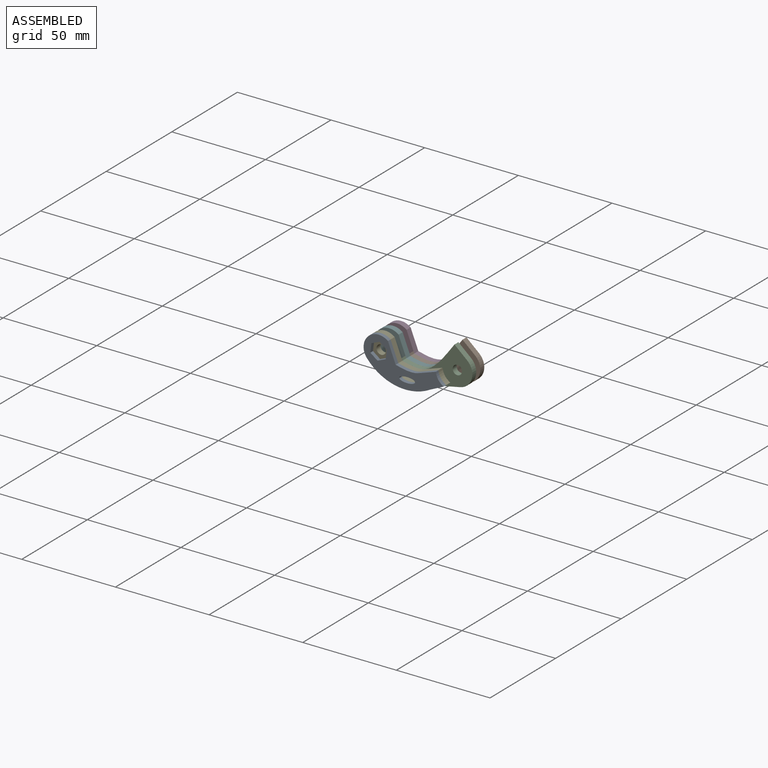
[diagram: assembled view]
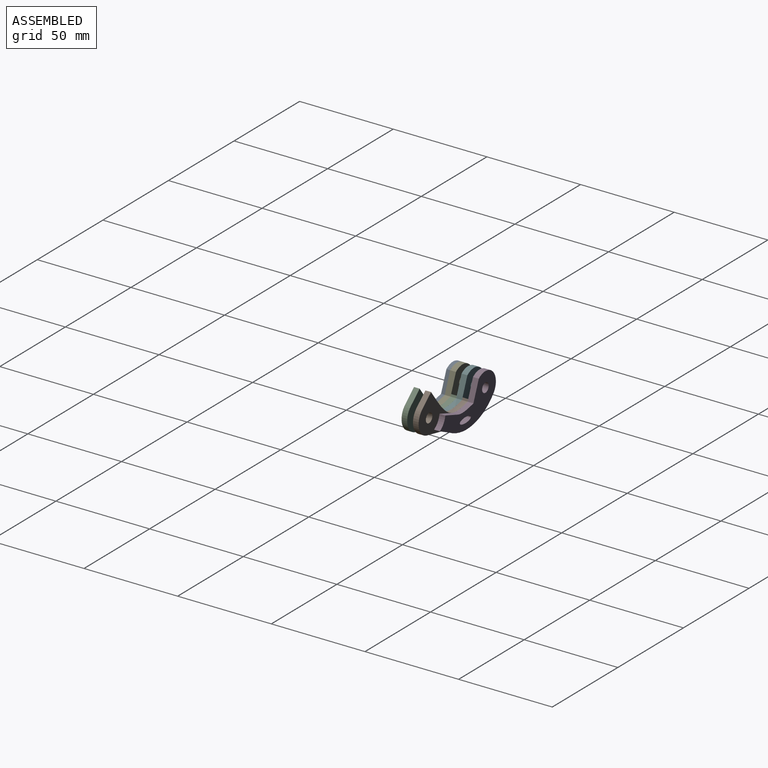
[diagram: assembled view, second angle]
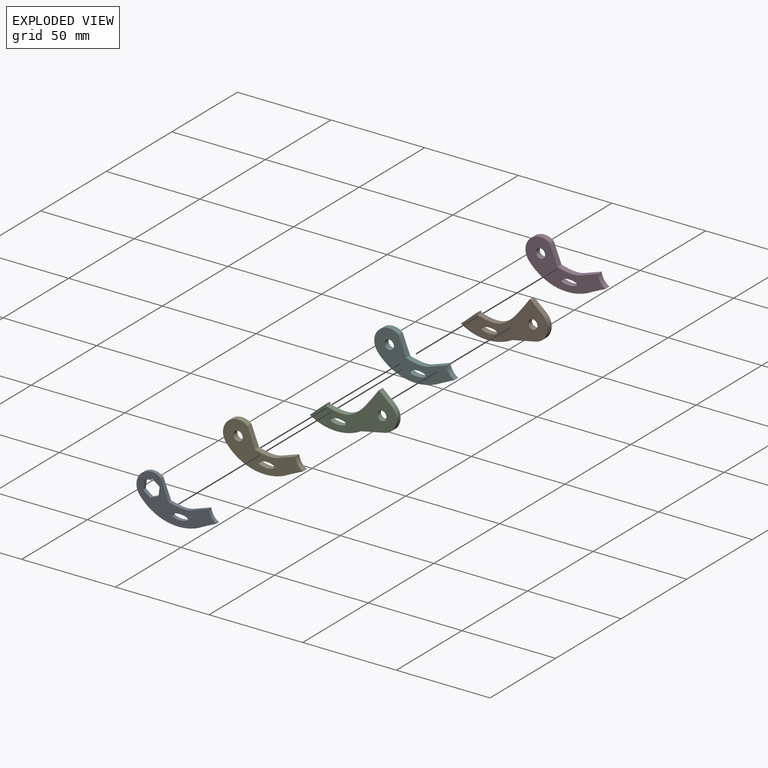
[diagram: exploded view]
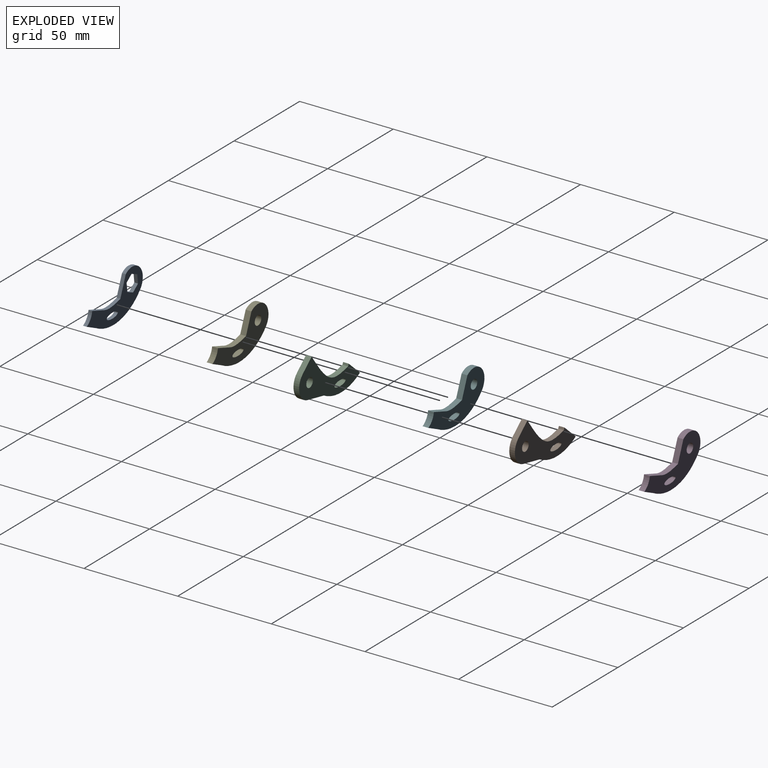
[diagram: exploded view, second angle]
ASSEMBLY  parts=6 mates=5
PART A: 16 faces, bbox 42.7x2x22.7 mm
  f0: plane 3.8x2.85mm, normal (0.6,0,0.8), area 9.5mm2, adj f1,f11,f14,f15
  f1: plane 4.72x2mm, normal (0.99,0,-0.12), area 9.5mm2, adj f0,f2,f14,f15
  f2: plane 4.37x2mm, normal (0.39,0,-0.92), area 9.5mm2, adj f1,f3,f14,f15
  f3: plane 3.8x2.85mm, normal (-0.6,0,-0.8), area 9.5mm2, adj f2,f4,f14,f15
  f4: plane 4.72x2mm, normal (-0.99,0,0.12), area 9.5mm2, adj f3,f11,f14,f15
  f5: cylinder r=26.67mm len=34.06mm, axis (0,1,0), area 75.5mm2, adj f6,f12,f14,f15
  f6: plane 7.11x3.34mm, normal (0.43,0,-0.91), area 15.7mm2, adj f5,f7,f14,f15
  f7: cylinder r=8mm len=6.06mm, axis (0,1,0), area 15.3mm2, adj f6,f8,f14,f15
  f8: plane 8.82x3mm, normal (-0.32,0,0.95), area 18.6mm2, adj f7,f9,f14,f15
  f9: extruded ~12.63x2mm, area 25.7mm2, adj f8,f10,f14,f15
  f10: plane 10.35x4.11mm, normal (0.93,0,0.37), area 22.3mm2, adj f9,f12,f14,f15
  f11: plane 4.37x2mm, normal (-0.39,0,0.92), area 9.5mm2, adj f0,f4,f14,f15
  f12: cylinder r=8mm len=13.01mm, axis (0,1,0), area 46.1mm2, adj f5,f10,f14,f15
  f13: extruded ~8.46x2.95mm, area 38mm2, adj f14,f15
  f14: plane 42.74x22.69mm, normal (0,-1,0), area 391.6mm2, adj f0,f1,f2,f3,f4,f5,f6,f7
  f15: plane 42.74x22.69mm, normal (0,1,0), area 391.6mm2, adj f0,f1,f2,f3,f4,f5,f6,f7
PART B: 13 faces, bbox 46.4x3x25.9 mm
  f0: extruded ~11.49x10.88mm, area 48mm2, adj f1,f9,f11,f12
  f1: extruded ~12.63x3mm, area 38.5mm2, adj f0,f2,f11,f12
  f2: plane 3x1.1mm, normal (0.93,0,0.37), area 3.6mm2, adj f1,f3,f11,f12
  f3: plane 8.58x7.57mm, normal (-0.66,0,0.75), area 34.3mm2, adj f2,f4,f11,f12
  f4: cylinder r=26.67mm len=27.52mm, axis (0,1,0), area 86.8mm2, adj f3,f5,f11,f12
  f5: cylinder r=7300.02mm len=12.48mm, axis (0,1,0), area 38.2mm2, adj f4,f6,f11,f12
  f6: cylinder r=8mm len=13.88mm, axis (0,1,0), area 53.4mm2, adj f5,f7,f11,f12
  f7: plane 6.77x5.88mm, normal (0.66,0,0.75), area 26.9mm2, adj f6,f9,f11,f12
  f8: extruded ~8.46x3mm, area 57mm2, adj f11,f12
  f9: plane 5.04x3.74mm, normal (-0.8,0,0.6), area 18.8mm2, adj f0,f7,f11,f12
  f10: cylinder r=2.5mm len=5mm, axis (0,1,0), area 47.1mm2, adj f11,f12
  f11: plane 46.39x25.87mm, normal (0,-1,0), area 467.4mm2, adj f0,f1,f2,f3,f4,f5,f6,f7
  f12: plane 46.39x25.87mm, normal (0,1,0), area 467.4mm2, adj f0,f1,f2,f3,f4,f5,f6,f7
PART C: same geometry as B
PART D: 11 faces, bbox 42.7x3.1x22.7 mm
  f0: cylinder r=26.67mm len=34.06mm, axis (0,1,0), area 116.9mm2, adj f1,f7,f9,f10
  f1: plane 7.11x3.34mm, normal (0.43,0,-0.91), area 24.4mm2, adj f0,f2,f9,f10
  f2: cylinder r=8mm len=6.06mm, axis (0,1,0), area 23.7mm2, adj f1,f3,f9,f10
  f3: plane 8.82x3.1mm, normal (-0.32,0,0.95), area 28.9mm2, adj f2,f4,f9,f10
  f4: extruded ~12.63x3.1mm, area 39.8mm2, adj f3,f5,f9,f10
  f5: plane 10.35x4.11mm, normal (0.93,0,0.37), area 34.5mm2, adj f4,f7,f9,f10
  f6: cylinder r=2.5mm len=5mm, axis (0,1,0), area 48.7mm2, adj f9,f10
  f7: cylinder r=8mm len=13.01mm, axis (0,1,0), area 71.5mm2, adj f0,f5,f9,f10
  f8: extruded ~8.46x3.1mm, area 58.9mm2, adj f9,f10
  f9: plane 42.74x22.69mm, normal (0,-1,0), area 430.6mm2, adj f0,f1,f2,f3,f4,f5,f6,f7
  f10: plane 42.74x22.69mm, normal (0,1,0), area 430.6mm2, adj f0,f1,f2,f3,f4,f5,f6,f7
PART E: same geometry as D
PART F: same geometry as D
PLACE A t=(-3.34,-9.55,4.42)mm
PLACE B t=(-3.34,2.65,4.42)mm
PLACE C t=(-3.34,-3.45,4.42)mm
PLACE D t=(-3.34,5.75,4.42)mm
PLACE E t=(-3.34,-6.45,4.42)mm
PLACE F t=(-3.34,-0.35,4.42)mm
MATE fastened B.f12 <-> D.f9  axis (0,1,0) through (-11.22,2.65,-0.7)mm
MATE fastened E.f9 <-> A.f15  axis (0,-1,0) through (-11.22,-9.55,-0.7)mm
MATE fastened F.f9 <-> C.f12  axis (0,-1,0) through (-11.22,-3.45,-0.7)mm
MATE fastened C.f11 <-> E.f10  axis (0,-1,0) through (-11.22,-6.45,-0.7)mm
MATE fastened B.f11 <-> F.f10  axis (0,-1,0) through (-11.22,-0.35,-0.7)mm
